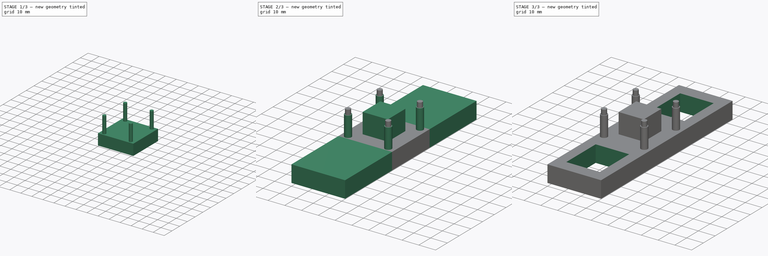
[diagram: build sequence overview — one tinted view per stage of 3, left to right]
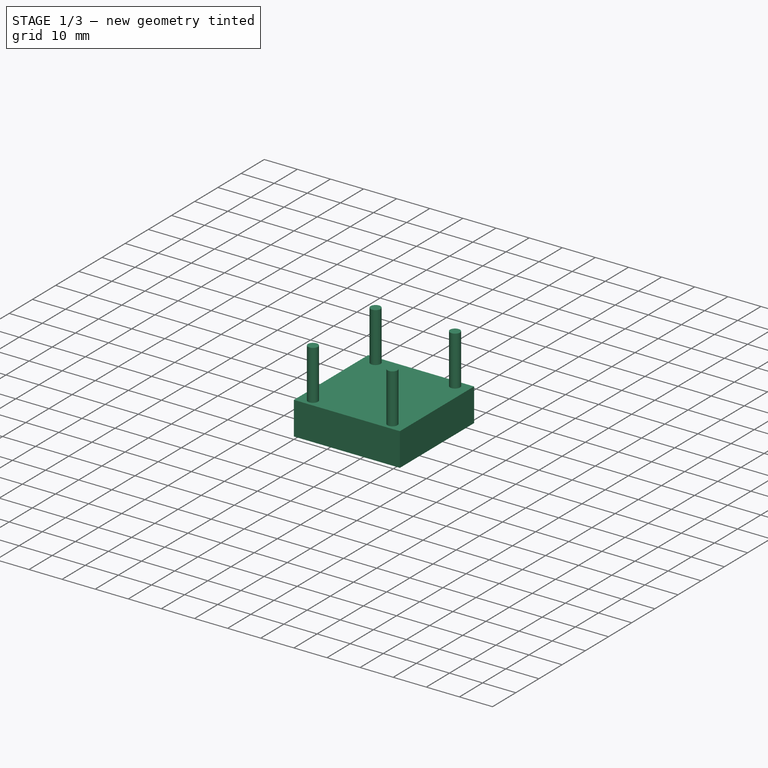
[diagram: stage 1 of 3 — iso view after this stage's code; geometry added in this stage tinted green]
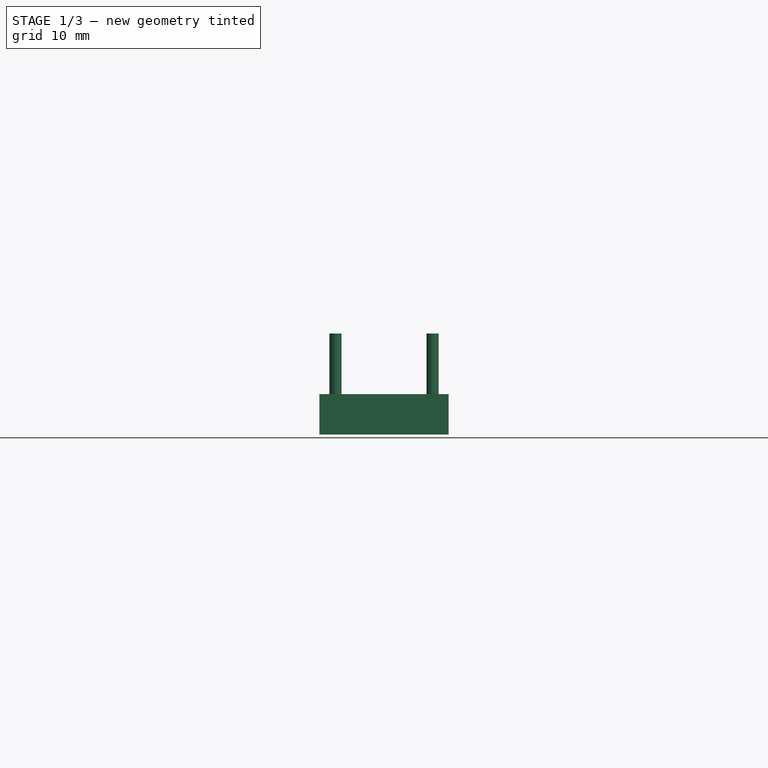
[diagram: stage 1 of 3 — front view after this stage's code; geometry added in this stage tinted green]
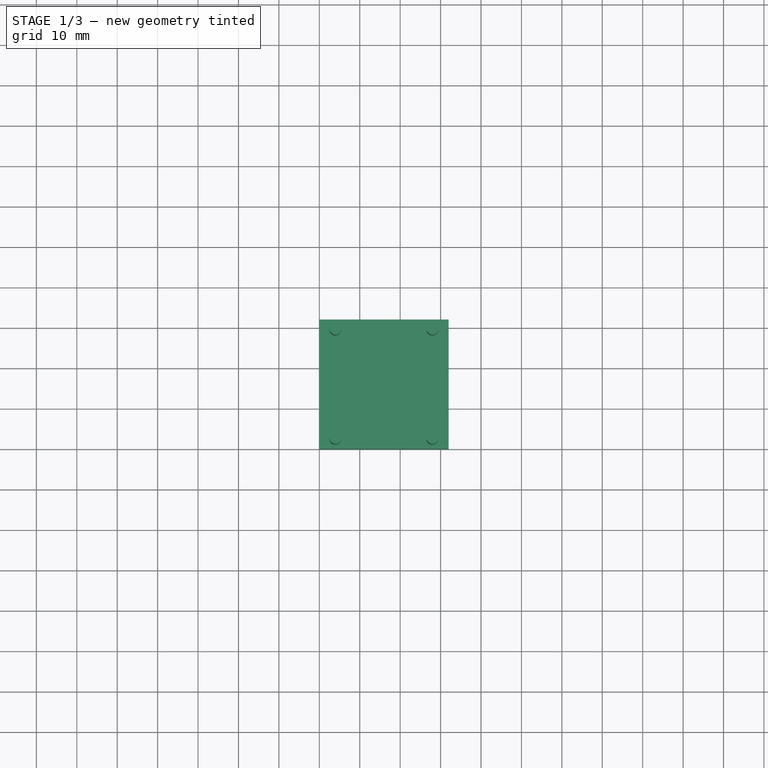
[diagram: stage 1 of 3 — top view after this stage's code; geometry added in this stage tinted green]
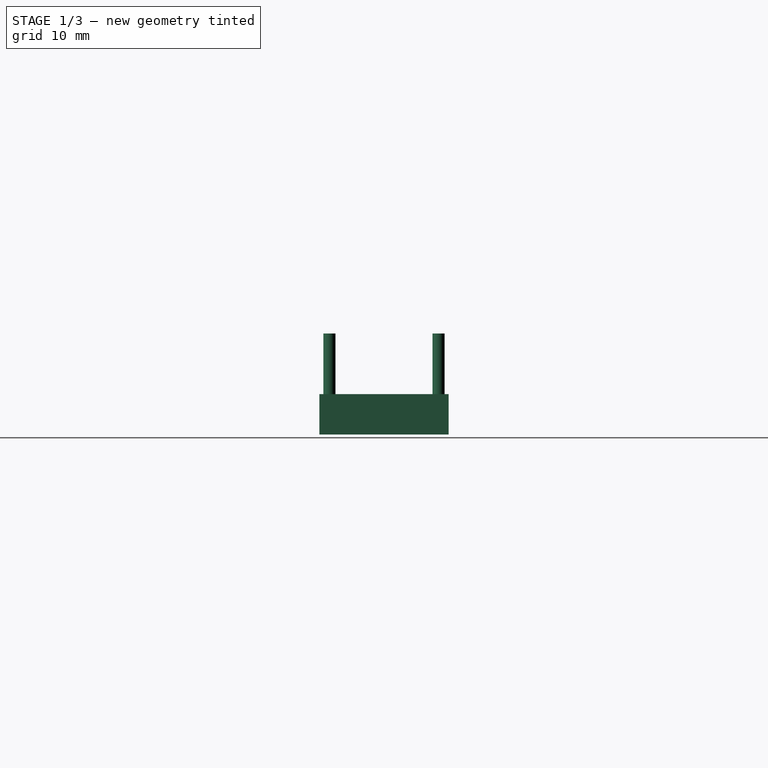
[diagram: stage 1 of 3 — right view after this stage's code; geometry added in this stage tinted green]
FCSTD DOCUMENT  (FreeCAD 0.18R16131 (Git))
Label: support_1_matrix
License: All rights reserved
LicenseURL: http://en.wikipedia.org/wiki/All_rights_reserved
objects: Sketcher::SketchObject×7, PartDesign::Pad×5, PartDesign::Pocket×2, App::MeasureDistance×2, Spreadsheet::Sheet×1, PartDesign::Body×1
note: 22 computed .brp shape members not serialized (recipe doc carries the construction recipe); baked Part::Feature solids carry a one-line shape summary decoded from their .brp

FEATURE [Sketcher::SketchObject] Sketch  label="carré_supp1"
  MapMode = 5
  Support = -> [XY_Plane]
  expr: Constraints[9] = <<Dimensions_support_matrix>>.largeur_supp
  expr: Constraints[10] = <<Dimensions_support_matrix>>.longueur_supp
  sketch-geometry (4):
    g0: LineSegment StartX=0 StartY=0 StartZ=0 EndX=32 EndY=0 EndZ=0
    g1: LineSegment StartX=32 StartY=0 StartZ=0 EndX=32 EndY=32 EndZ=0
    g2: LineSegment StartX=32 StartY=32 StartZ=0 EndX=0 EndY=32 EndZ=0
    g3: LineSegment StartX=0 StartY=32 StartZ=0 EndX=0 EndY=0 EndZ=0
  constraints (11):
    c: Coincident(g0,g1)
    c: Coincident(g1,g2)
    c: Coincident(g2,g3)
    c: Coincident(g3,g0)
    c: Horizontal(g0)
    c: Horizontal(g2)
    c: Vertical(g1)
    c: Vertical(g3)
    c: Coincident(g0,g-1)
    c: DistanceX(g0,g0) = 32
    c: DistanceY(g1,g1) = 32
FEATURE [Spreadsheet::Sheet] Spreadsheet  label="Dimensions_support_matrix"
  cells = A1=Largeur max7219_supp (mm); B1=Longueur max7219_supp (mm); C1=Epaisseur support (mm); D1=Distance du bord (mm) axe X; E1=Rayons trous (mm=; F1=Hauteur tige (mm=; A2(largeur_supp)==32mm; B2(longueur_supp)==32mm; C2(epaisseur_supp)=10; D2(distance_bord)==4mm; E2(rayon_trou)==1.5mm; F2(hauteur_tige)==15mm; D4=Distance du bord (mm) Axe Y; F4=Hauteur support pcb (mm); D5(distance_bord_axe_y)==1mm; F5(hauteur_supp_pcb)==12mm; C7=Longueur prolongement supp sol (mm); C8(longueur_prolong_sup_sol)=40; C11=Largeur trou (mm=; C12(largeur_trous_fils)==20mm
FEATURE [PartDesign::Pad] Pad  label="Pad_supp1"
  Length = 10
  Length2 = 100
  Profile = -> Sketch
  Type = 0
  expr: Length = <<Dimensions_support_matrix>>.epaisseur_supp
FEATURE [Sketcher::SketchObject] Sketch001  label="trous_fixations"
  ExternalGeometry = -> [Pad]
  MapMode = 5
  Placement = pos=(0,0,10) rot=(0,0,1;0rad)
  Support = -> [Pad]
  expr: Constraints[3] = <<Dimensions_support_matrix>>.rayon_trou
  expr: Constraints[0] = <<Dimensions_support_matrix>>.rayon_trou
  expr: Constraints[1] = <<Dimensions_support_matrix>>.rayon_trou
  expr: Constraints[2] = <<Dimensions_support_matrix>>.rayon_trou
  sketch-geometry (4):
    g0: Circle CenterX=4 CenterY=29.5 CenterZ=0 NormalX=0 NormalY=0 NormalZ=1 AngleXU=0 Radius=1.5
    g1: Circle CenterX=28 CenterY=29.5 CenterZ=0 NormalX=0 NormalY=0 NormalZ=1 AngleXU=0 Radius=1.5
    g2: Circle CenterX=4 CenterY=2.5 CenterZ=0 NormalX=0 NormalY=0 NormalZ=1 AngleXU=0 Radius=1.5
    g3: Circle CenterX=28 CenterY=2.5 CenterZ=0 NormalX=0 NormalY=0 NormalZ=1 AngleXU=0 Radius=1.5
  constraints (4):
    c: Radius(g0) = 1.5
    c: Radius(g1) = 1.5
    c: Radius(g2) = 1.5
    c: Radius(g3) = 1.5
FEATURE [PartDesign::Pad] Pad001  label="tige_fixations"
  BaseFeature = -> Pad
  Length = 15
  Length2 = 100
  Profile = -> Sketch001
  Type = 0
  expr: Length = <<Dimensions_support_matrix>>.hauteur_tige
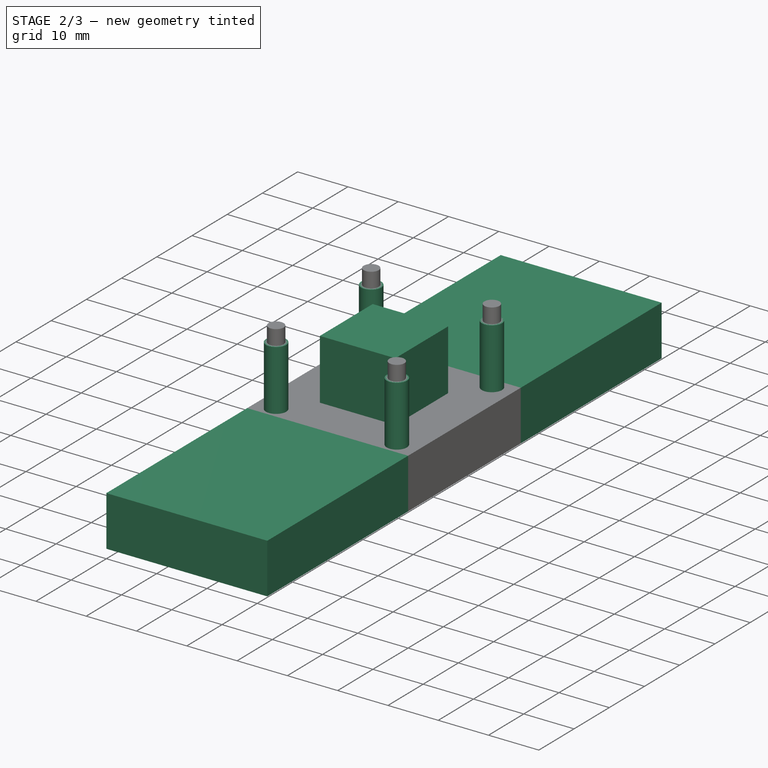
[diagram: stage 2 of 3 — iso view after this stage's code; geometry added in this stage tinted green]
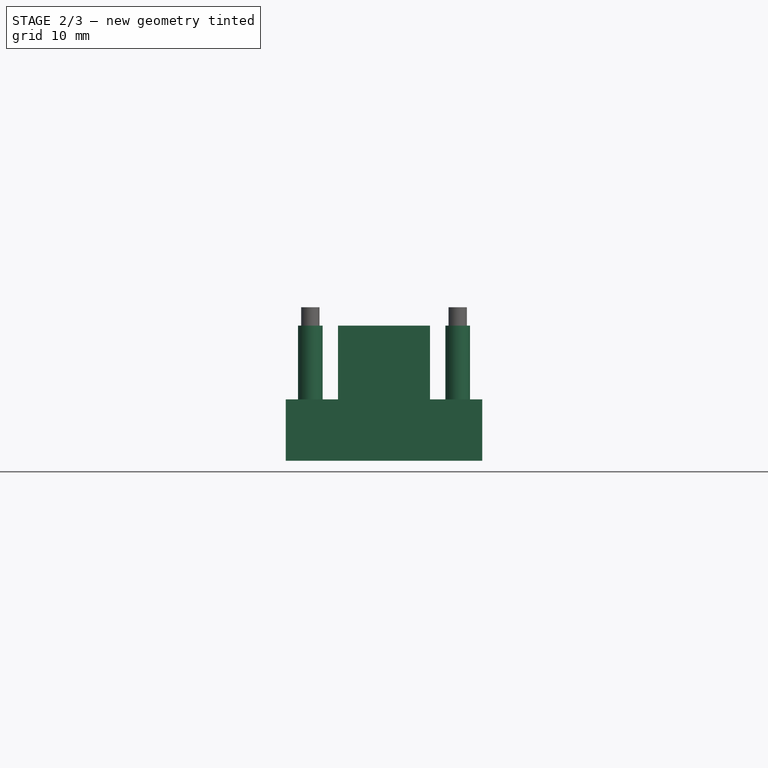
[diagram: stage 2 of 3 — front view after this stage's code; geometry added in this stage tinted green]
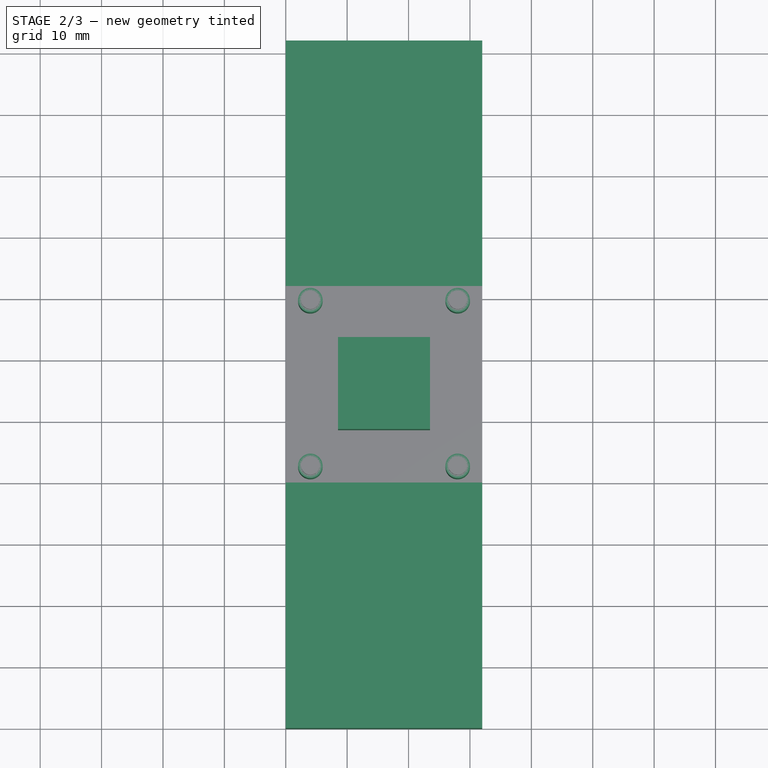
[diagram: stage 2 of 3 — top view after this stage's code; geometry added in this stage tinted green]
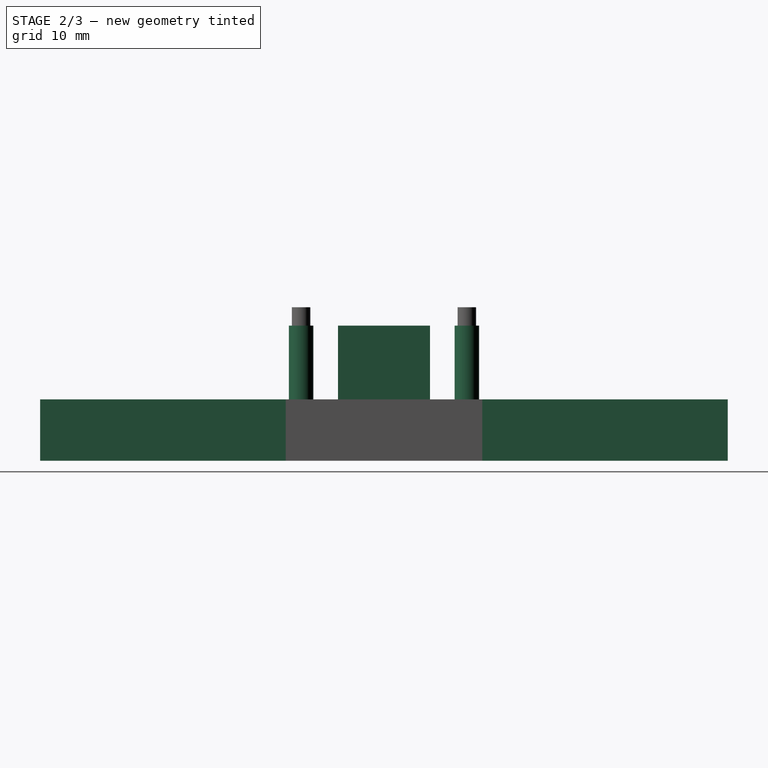
[diagram: stage 2 of 3 — right view after this stage's code; geometry added in this stage tinted green]
FEATURE [Sketcher::SketchObject] Sketch002  label="support_pcb"
  ExternalGeometry = -> [Pad001]
  MapMode = 5
  Placement = pos=(0,0,10) rot=(0,0,1;0rad)
  Support = -> [Pad001]
  expr: Constraints[4] = <<Dimensions_support_matrix>>.rayon_trou + 0.5mm
  expr: Constraints[5] = <<Dimensions_support_matrix>>.rayon_trou + 0.5mm
  expr: Constraints[6] = <<Dimensions_support_matrix>>.rayon_trou + 0.5mm
  expr: Constraints[7] = <<Dimensions_support_matrix>>.rayon_trou + 0.5mm
  sketch-geometry (9):
    g0: Circle CenterX=4 CenterY=2.5 CenterZ=0 NormalX=0 NormalY=0 NormalZ=1 AngleXU=0 Radius=2
    g1: Circle CenterX=28 CenterY=2.5 CenterZ=0 NormalX=0 NormalY=0 NormalZ=1 AngleXU=0 Radius=2
    g2: Circle CenterX=4 CenterY=29.5 CenterZ=0 NormalX=0 NormalY=0 NormalZ=1 AngleXU=0 Radius=2
    g3: Circle CenterX=28 CenterY=29.5 CenterZ=0 NormalX=0 NormalY=0 NormalZ=1 AngleXU=0 Radius=2
    g4: LineSegment StartX=23.5 StartY=8.5 StartZ=0 EndX=23.5 EndY=23.5 EndZ=0
    g5: LineSegment StartX=23.5 StartY=23.5 StartZ=0 EndX=8.5 EndY=23.5 EndZ=0
    g6: LineSegment StartX=8.5 StartY=23.5 StartZ=0 EndX=8.5 EndY=8.5 EndZ=0
    g7: LineSegment StartX=8.5 StartY=8.5 StartZ=0 EndX=23.5 EndY=8.5 EndZ=0
    g8: Circle [constr] CenterX=16 CenterY=16 CenterZ=0 NormalX=0 NormalY=0 NormalZ=1 AngleXU=0 Radius=10.6066
  constraints (21):
    c: Coincident(g0,g-3)
    c: Coincident(g1,g-4)
    c: Coincident(g2,g-5)
    c: Coincident(g3,g-6)
    c: Radius(g0) = 2
    c: Radius(g1) = 2
    c: Radius(g3) = 2
    c: Radius(g2) = 2
    c: Coincident(g4,g5)
    c: Coincident(g5,g6)
    c: Coincident(g6,g7)
    c: Coincident(g7,g4)
    c: Equal(g4,g5)
    c: Equal(g4,g6)
    c: Equal(g4,g7)
    c: PointOnObject(g4,g8)
    c: PointOnObject(g5,g8)
    c: PointOnObject(g6,g8)
    c: PointOnObject(g7,g8)
    c: Parallel(g7,g-1)
    c: DistanceX(g7,g7) = 15
FEATURE [PartDesign::Pad] Pad002  label="tige_plus_supp_pcb"
  BaseFeature = -> Pad001
  Length = 12
  Length2 = 100
  Profile = -> Sketch002
  Type = 0
  expr: Length = <<Dimensions_support_matrix>>.hauteur_supp_pcb
FEATURE [Sketcher::SketchObject] Sketch003  label="prolongement_supp_sol"
  ExternalGeometry = -> [Pad002]
  MapMode = 5
  Placement = pos=(0,0,0) rot=(1,0,0;1.5708rad)
  Support = -> [Pad002]
  sketch-geometry (4):
    g0: LineSegment StartX=0 StartY=10 StartZ=0 EndX=32 EndY=10 EndZ=0
    g1: LineSegment StartX=32 StartY=10 StartZ=0 EndX=32 EndY=0 EndZ=0
    g2: LineSegment StartX=32 StartY=0 StartZ=0 EndX=0 EndY=0 EndZ=0
    g3: LineSegment StartX=0 StartY=0 StartZ=0 EndX=0 EndY=10 EndZ=0
  constraints (10):
    c: Coincident(g0,g1)
    c: Coincident(g1,g2)
    c: Coincident(g2,g3)
    c: Coincident(g3,g0)
    c: Horizontal(g0)
    c: Horizontal(g2)
    c: Vertical(g1)
    c: Vertical(g3)
    c: Coincident(g2,g-1)
    c: Coincident(g0,g-3)
FEATURE [PartDesign::Pad] Pad003  label="prolongement_bas"
  BaseFeature = -> Pad002
  Length = 40
  Length2 = 100
  Profile = -> Sketch003
  Type = 0
  expr: Length = Dimensions_support_matrix.longueur_prolong_sup_sol
FEATURE [Sketcher::SketchObject] Sketch004  label="prolongement_supp_haut"
  ExternalGeometry = -> [Pad003]
  MapMode = 5
  Placement = pos=(0,32,0) rot=(0,0.707107,0.707107;3.14159rad)
  Support = -> [Pad003]
  sketch-geometry (4):
    g0: LineSegment StartX=-32 StartY=10 StartZ=0 EndX=0 EndY=10 EndZ=0
    g1: LineSegment StartX=0 StartY=10 StartZ=0 EndX=0 EndY=0 EndZ=0
    g2: LineSegment StartX=0 StartY=0 StartZ=0 EndX=-32 EndY=0 EndZ=0
    g3: LineSegment StartX=-32 StartY=0 StartZ=0 EndX=-32 EndY=10 EndZ=0
  constraints (10):
    c: Coincident(g0,g1)
    c: Coincident(g1,g2)
    c: Coincident(g2,g3)
    c: Coincident(g3,g0)
    c: Horizontal(g0)
    c: Horizontal(g2)
    c: Vertical(g1)
    c: Vertical(g3)
    c: Coincident(g0,g-3)
    c: Coincident(g1,g-1)
FEATURE [PartDesign::Pad] Pad004  label="prolongement_haut"
  BaseFeature = -> Pad003
  Length = 40
  Length2 = 100
  Profile = -> Sketch004
  Type = 0
  expr: Length = Dimensions_support_matrix.longueur_prolong_sup_sol
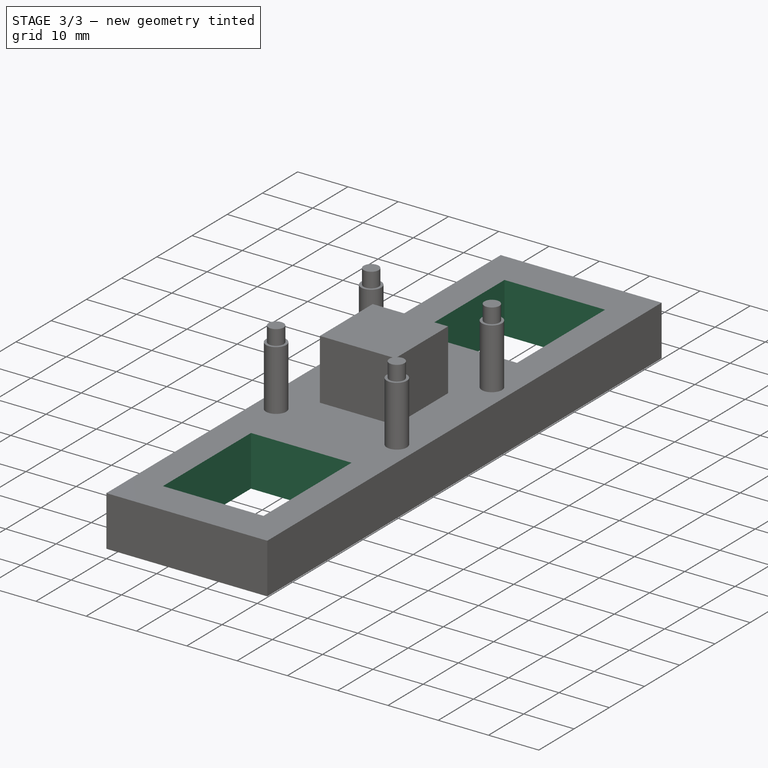
[diagram: stage 3 of 3 — iso view after this stage's code; geometry added in this stage tinted green]
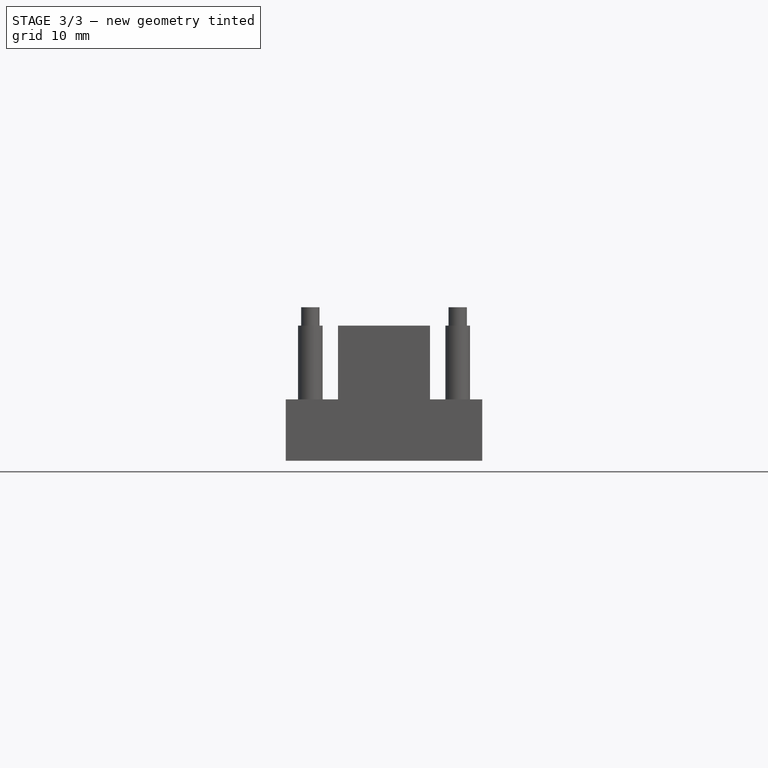
[diagram: stage 3 of 3 — front view after this stage's code; geometry added in this stage tinted green]
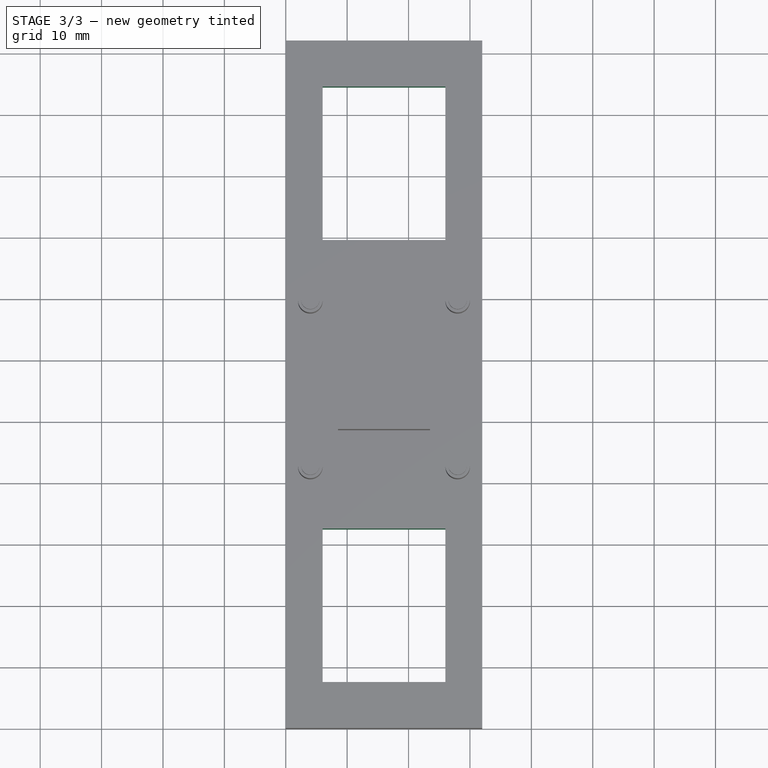
[diagram: stage 3 of 3 — top view after this stage's code; geometry added in this stage tinted green]
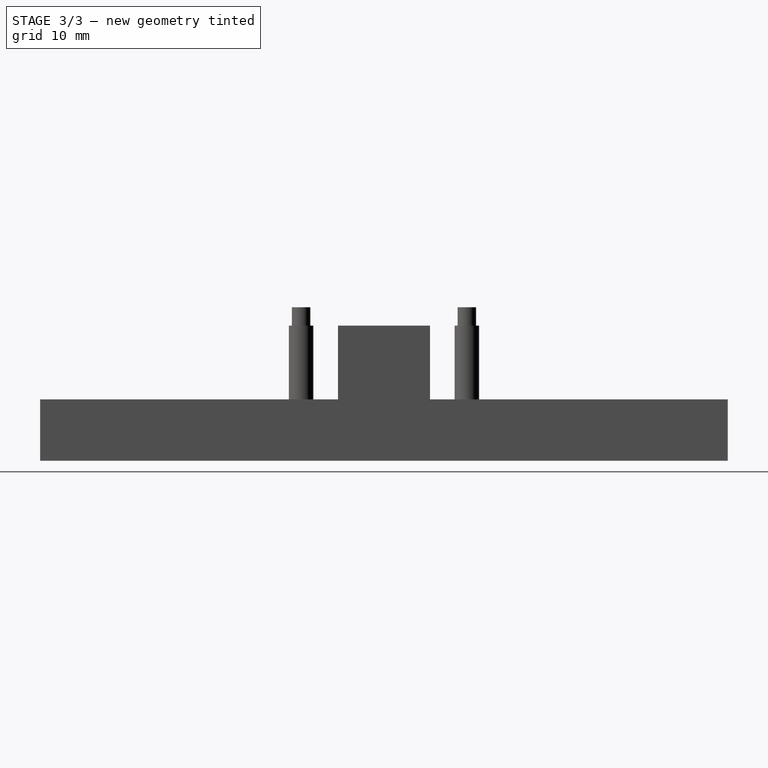
[diagram: stage 3 of 3 — right view after this stage's code; geometry added in this stage tinted green]
FEATURE [Sketcher::SketchObject] Sketch005  label="trou_bas"
  ExternalGeometry = -> [Pad004]
  MapMode = 5
  Placement = pos=(0,2.2e-15,10) rot=(0,0,1;0rad)
  Support = -> [Pad004]
  expr: Constraints[8] = Dimensions_support_matrix.largeur_trous_fils
  sketch-geometry (4):
    g0: LineSegment StartX=6 StartY=-7.5 StartZ=0 EndX=26 EndY=-7.5 EndZ=0
    g1: LineSegment StartX=26 StartY=-7.5 StartZ=0 EndX=26 EndY=-32.5 EndZ=0
    g2: LineSegment StartX=26 StartY=-32.5 StartZ=0 EndX=6 EndY=-32.5 EndZ=0
    g3: LineSegment StartX=6 StartY=-32.5 StartZ=0 EndX=6 EndY=-7.5 EndZ=0
  constraints (12):
    c: Coincident(g0,g1)
    c: Coincident(g1,g2)
    c: Coincident(g2,g3)
    c: Coincident(g3,g0)
    c: Horizontal(g0)
    c: Horizontal(g2)
    c: Vertical(g1)
    c: Vertical(g3)
    c: DistanceX(g0,g0) = 20
    c: DistanceX(g0) = 26
    c: DistanceY(g0) = -7.5
    c: DistanceY(g2) = -32.5
FEATURE [Sketcher::SketchObject] Sketch006  label="trou_haut"
  ExternalGeometry = -> [Pad004]
  MapMode = 5
  Placement = pos=(0,2.2e-15,10) rot=(0,0,1;0rad)
  Support = -> [Pad004]
  expr: Constraints[8] = Dimensions_support_matrix.largeur_trous_fils
  sketch-geometry (4):
    g0: LineSegment StartX=6 StartY=64.5 StartZ=0 EndX=26 EndY=64.5 EndZ=0
    g1: LineSegment StartX=26 StartY=64.5 StartZ=0 EndX=26 EndY=39.5 EndZ=0
    g2: LineSegment StartX=26 StartY=39.5 StartZ=0 EndX=6 EndY=39.5 EndZ=0
    g3: LineSegment StartX=6 StartY=39.5 StartZ=0 EndX=6 EndY=64.5 EndZ=0
  constraints (12):
    c: Coincident(g0,g1)
    c: Coincident(g1,g2)
    c: Coincident(g2,g3)
    c: Coincident(g3,g0)
    c: Horizontal(g0)
    c: Horizontal(g2)
    c: Vertical(g1)
    c: Vertical(g3)
    c: DistanceX(g0,g0) = 20
    c: DistanceX(g0) = 6
    c: DistanceY(g0) = 64.5
    c: DistanceY(g1) = 39.5
FEATURE [PartDesign::Pocket] Pocket  label="trou_haut001"
  BaseFeature = -> Pad004
  Length = 5
  Length2 = 100
  Profile = -> Sketch006
  Type = 1
FEATURE [PartDesign::Pocket] Pocket001  label="trou_bas001"
  BaseFeature = -> Pocket
  Length = 5
  Length2 = 100
  Profile = -> Sketch005
  Type = 1
FEATURE [PartDesign::Body] Body  label="Body_1_matrix"
  Group = -> [Sketch,Pad,Sketch001,Pad001,Sketch002,Pad002,Sketch003,Pad003,Sketch004,Pad004,Sketch005,Sketch006,Pocket,Pocket001]
  Origin = -> Origin
  Tip = -> Pocket001
FEATURE [App::MeasureDistance] Distance  label="Distance: 32,04 mm"
  Distance = 32.0405
  P1 = (32,-0.0455816,10)
  P2 = (32,31.995,10)
FEATURE [App::MeasureDistance] Distance001  label="Distance: 40,00 mm"
  Distance = 40
  P1 = (32,-40,10)
  P2 = (32,1.1e-15,10)
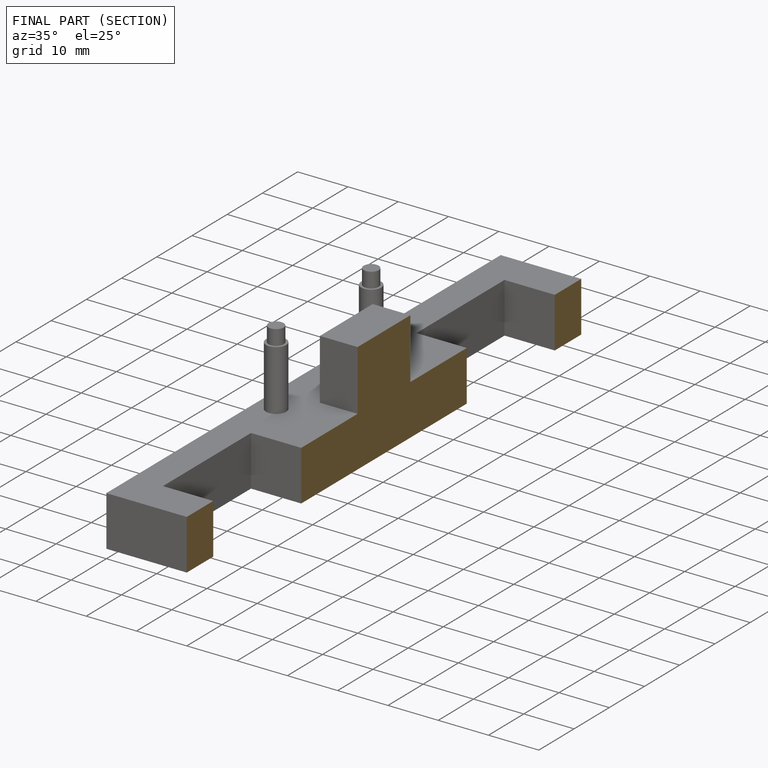
[diagram: finished part — half-section view (interior)]
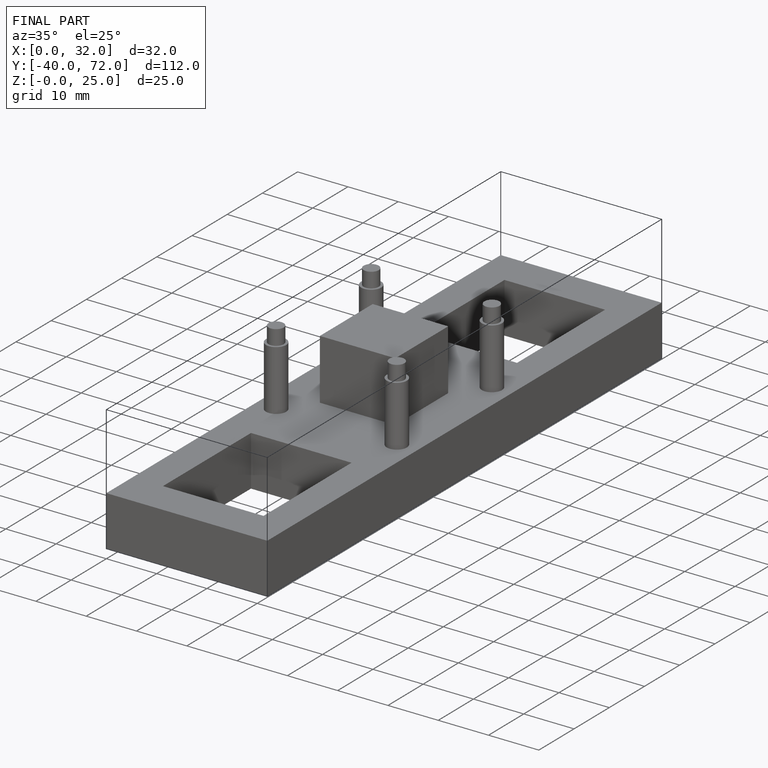
[diagram: finished part — iso view with bounding-box wireframe]
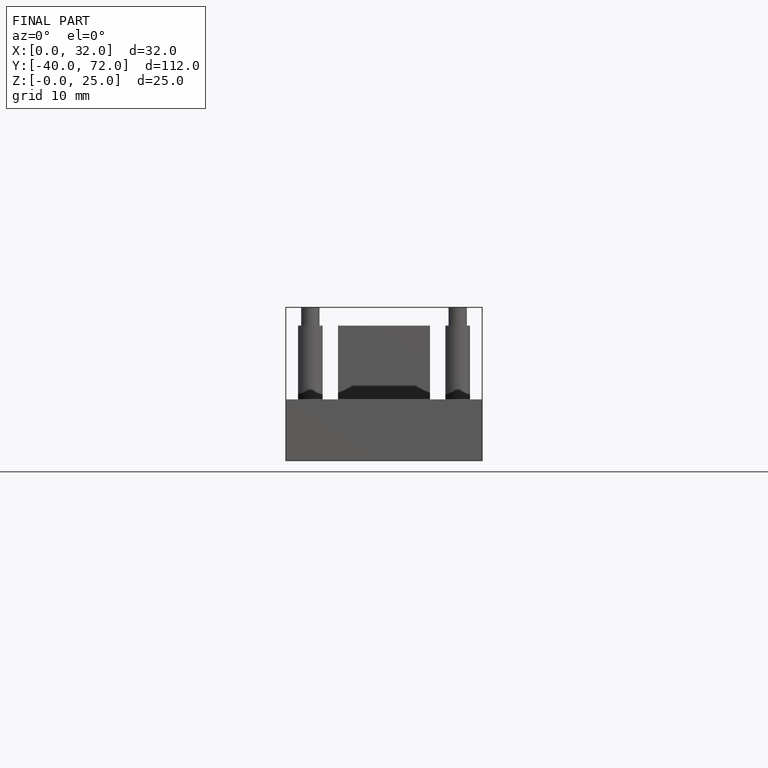
[diagram: finished part — front view with bounding-box wireframe]
